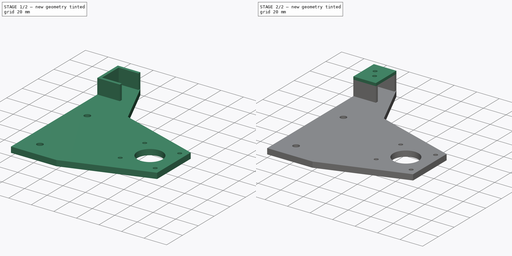
[diagram: build sequence overview — one tinted view per stage of 2, left to right]
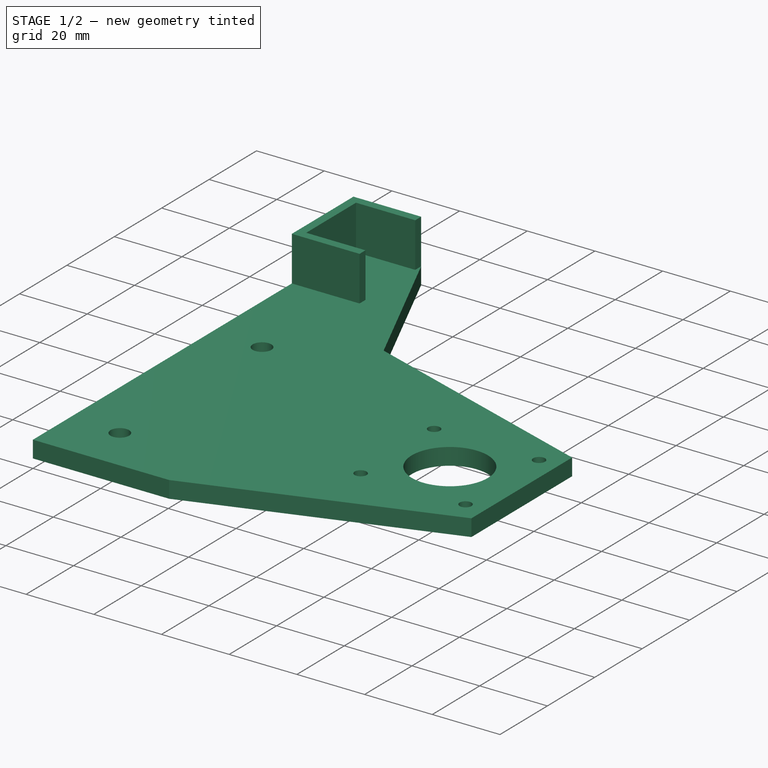
[diagram: stage 1 of 2 — iso view after this stage's code; geometry added in this stage tinted green]
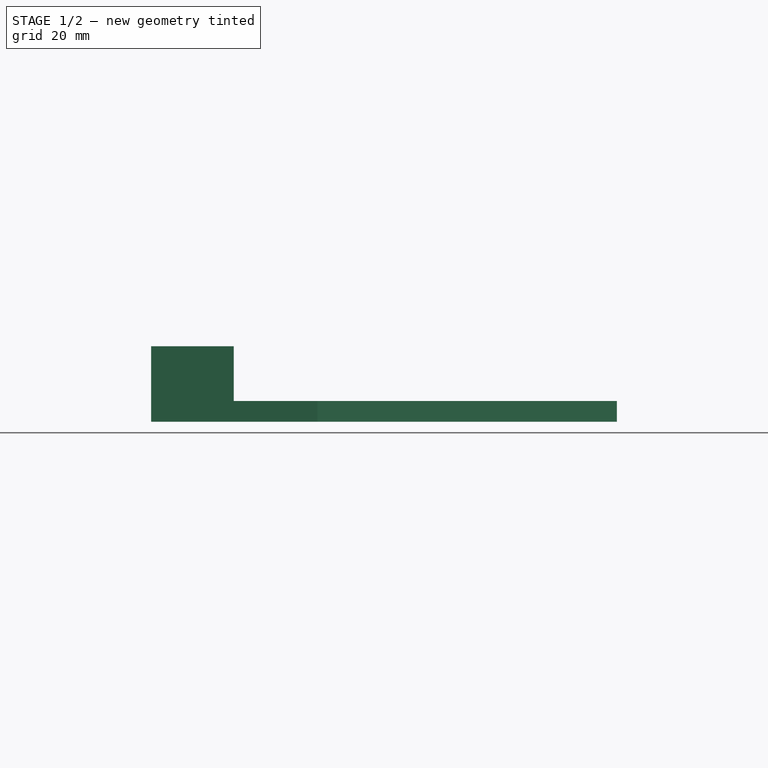
[diagram: stage 1 of 2 — front view after this stage's code; geometry added in this stage tinted green]
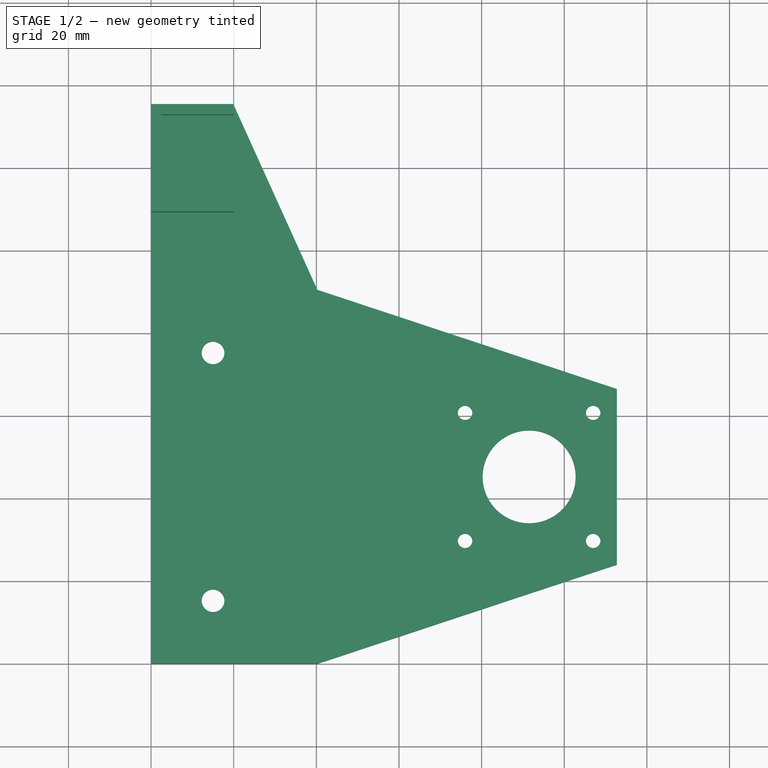
[diagram: stage 1 of 2 — top view after this stage's code; geometry added in this stage tinted green]
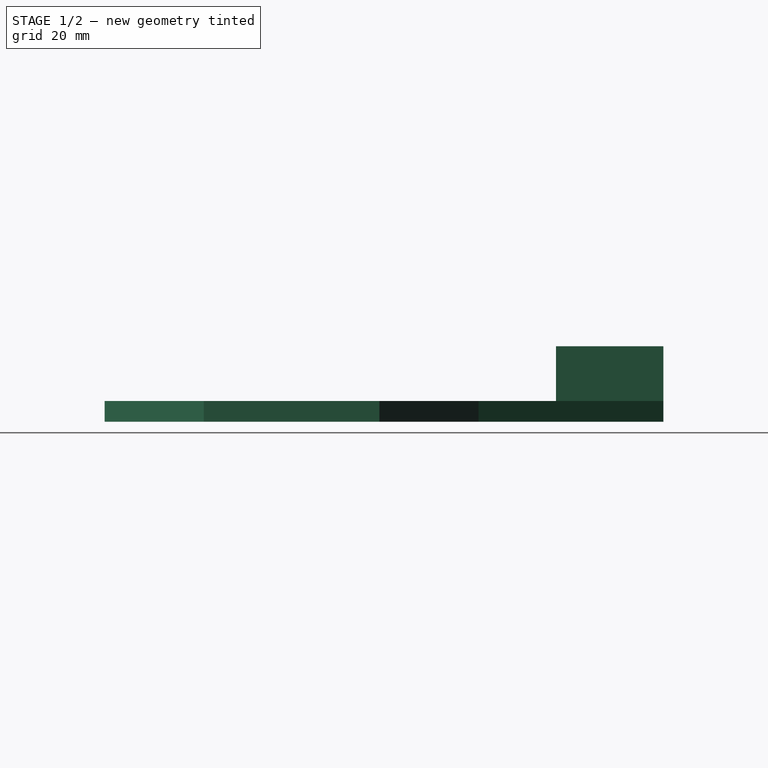
[diagram: stage 1 of 2 — right view after this stage's code; geometry added in this stage tinted green]
FCSTD DOCUMENT  (FreeCAD 0.19R)
Label: x-axis-motor-mount
License: All rights reserved
LicenseURL: http://en.wikipedia.org/wiki/All_rights_reserved
objects: Sketcher::SketchObject×3, PartDesign::Pad×3, PartDesign::Body×1
note: 10 computed .brp shape members not serialized (recipe doc carries the construction recipe); baked Part::Feature solids carry a one-line shape summary decoded from their .brp

FEATURE [Sketcher::SketchObject] Sketch
  FullyConstrained = true
  MapMode = 5
  Support = -> [XY_Plane]
  sketch-geometry (31):
    g0: LineSegment StartX=0 StartY=0 StartZ=0 EndX=40.25 EndY=0 EndZ=0
    g1: LineSegment StartX=40.25 StartY=90.5 StartZ=0 EndX=0 EndY=90.5 EndZ=0
    g2: LineSegment StartX=112.75 StartY=66.5 StartZ=0 EndX=112.75 EndY=24 EndZ=0
    g3: LineSegment StartX=40.25 StartY=90.5 StartZ=0 EndX=112.75 EndY=66.5 EndZ=0
    g4: LineSegment StartX=40.25 StartY=0 StartZ=0 EndX=112.75 EndY=24 EndZ=0
    g5: LineSegment StartX=0 StartY=45.25 StartZ=0 EndX=112.75 EndY=45.25 EndZ=0
    g6: LineSegment StartX=15 StartY=90.5 StartZ=0 EndX=15 EndY=0 EndZ=0
    g7: Circle CenterX=15 CenterY=75.25 CenterZ=0 NormalX=0 NormalY=0 NormalZ=1 AngleXU=0 Radius=2.75
    g8: Circle CenterX=15 CenterY=15.25 CenterZ=0 NormalX=0 NormalY=0 NormalZ=1 AngleXU=0 Radius=2.75
    g9: LineSegment StartX=112.75 StartY=66.5 StartZ=0 EndX=70.25 EndY=66.5 EndZ=0
    g10: LineSegment StartX=70.25 StartY=66.5 StartZ=0 EndX=70.25 EndY=24 EndZ=0
    g11: LineSegment StartX=70.25 StartY=24 StartZ=0 EndX=112.75 EndY=24 EndZ=0
    g12: LineSegment StartX=40.25 StartY=90.5 StartZ=0 EndX=40.25 EndY=0 EndZ=0
    g13: GeomPoint X=40.25 Y=45.25 Z=0
    g14: GeomPoint X=70.25 Y=45.25 Z=0
    g15: LineSegment StartX=91.5 StartY=66.5 StartZ=0 EndX=91.5 EndY=24 EndZ=0
    g16: Circle CenterX=91.5 CenterY=45.25 CenterZ=0 NormalX=0 NormalY=0 NormalZ=1 AngleXU=0 Radius=11.25
    g17: LineSegment StartX=76 StartY=60.75 StartZ=0 EndX=107 EndY=60.75 EndZ=0
    g18: LineSegment StartX=107 StartY=60.75 StartZ=0 EndX=107 EndY=29.75 EndZ=0
    g19: LineSegment StartX=107 StartY=29.75 StartZ=0 EndX=76 EndY=29.75 EndZ=0
    g20: LineSegment StartX=76 StartY=29.75 StartZ=0 EndX=76 EndY=60.75 EndZ=0
    g21: GeomPoint X=91.5 Y=60.75 Z=0
    g22: GeomPoint X=76 Y=45.25 Z=0
    g23: Circle CenterX=76 CenterY=60.75 CenterZ=0 NormalX=0 NormalY=0 NormalZ=1 AngleXU=0 Radius=1.75
    g24: Circle CenterX=107 CenterY=60.75 CenterZ=0 NormalX=0 NormalY=0 NormalZ=1 AngleXU=0 Radius=1.75
    g25: Circle CenterX=107 CenterY=29.75 CenterZ=0 NormalX=0 NormalY=0 NormalZ=1 AngleXU=0 Radius=1.75
    g26: Circle CenterX=76 CenterY=29.75 CenterZ=0 NormalX=0 NormalY=0 NormalZ=1 AngleXU=0 Radius=1.75
    g27: LineSegment StartX=0 StartY=135.25 StartZ=0 EndX=20 EndY=135.25 EndZ=0
    g28: LineSegment StartX=20 StartY=135.25 StartZ=0 EndX=40.25 EndY=90.5 EndZ=0
    g29: LineSegment StartX=0 StartY=0 StartZ=0 EndX=0 EndY=135.25 EndZ=0
    g30: GeomPoint X=0 Y=109.25 Z=0
  constraints (79):
    c: Horizontal(g0)
    c: Horizontal(g1)
    c: Coincident(g0,g-1)
    c: DistanceY(g0,g1) = 90.5
    c: Vertical(g2)
    c: Coincident(g3,g1)
    c: Coincident(g3,g2)
    c: Coincident(g4,g0)
    c: Coincident(g4,g2)
    c: Equal(g1,g0)
    c: Horizontal(g5)
    c: Symmetric(g1,g0,g5)
    c: Symmetric(g2,g2,g5)
    c: PointOnObject(g6,g1)
    c: PointOnObject(g6,g0)
    c: Vertical(g6)
    c: DistanceX(g1,g6) = 15
    c: PointOnObject(g7,g6)
    c: PointOnObject(g8,g6)
    c: DistanceY(g7,g6) = 15.25
    c: DistanceY(g6,g8) = 15.25
    c: Diameter(g8) = 5.5
    c: Diameter(g7) = 5.5
    c: DistanceY(g2,g2) = 42.5
    c: Coincident(g9,g2)
    c: Horizontal(g9)
    c: Coincident(g10,g9)
    c: Vertical(g10)
    c: Coincident(g11,g10)
    c: Coincident(g11,g2)
    c: Horizontal(g11)
    c: Equal(g9,g2)
    c: Coincident(g12,g1)
    c: Coincident(g12,g0)
    c: PointOnObject(g13,g12)
    c: PointOnObject(g14,g5)
    c: PointOnObject(g14,g10)
    c: PointOnObject(g13,g5)
    c: DistanceX(g13,g14) = 30
    c: PointOnObject(g15,g11)
    c: Vertical(g15)
    c: Symmetric(g9,g2,g15)
    c: PointOnObject(g16,g5)
    c: PointOnObject(g16,g15)
    c: Diameter(g16) = 22.5
    c: Coincident(g17,g18)
    c: Coincident(g18,g19)
    c: Coincident(g19,g20)
    c: Coincident(g20,g17)
    c: Horizontal(g17)
    c: Horizontal(g19)
    c: Vertical(g18)
    c: Vertical(g20)
    c: PointOnObject(g21,g15)
    c: PointOnObject(g22,g5)
    c: Symmetric(g17,g17,g21)
    c: Symmetric(g17,g19,g22)
    c: DistanceX(g17,g17) = 31
    c: Equal(g17,g20)
    c: Coincident(g23,g17)
    c: Coincident(g24,g17)
    c: Coincident(g25,g18)
    c: Coincident(g26,g19)
    c: Diameter(g23) = 3.5
    c: Equal(g23,g24)
    c: Equal(g24,g25)
    c: Equal(g25,g26)
    c: Horizontal(g27)
    c: PointOnObject(g27,g-2)
    c: DistanceX(g27,g27) = 20
    c: Coincident(g28,g27)
    c: Coincident(g28,g1)
    c: DistanceX(g0,g0) = 40.25
    c: Coincident(g29,g0)
    c: Coincident(g29,g27)
    c: PointOnObject(g5,g29)
    c: PointOnObject(g30,g29)
    c: DistanceY(g30,g27) = 26
    c: DistanceY(g5,g30) = 64
FEATURE [PartDesign::Pad] Pad
  Direction = (1,1,1)
  Length = 5
  Length2 = 100
  Profile = -> Sketch
  Type = 0
FEATURE [Sketcher::SketchObject] Sketch001
  FullyConstrained = true
  MapMode = 5
  Placement = pos=(0,0,5) rot=(0,0,1;0rad)
  Support = -> [Pad]
  sketch-geometry (8):
    g0: LineSegment StartX=0 StartY=135.25 StartZ=0 EndX=20 EndY=135.25 EndZ=0
    g1: LineSegment StartX=20 StartY=109.25 StartZ=0 EndX=0 EndY=109.25 EndZ=0
    g2: LineSegment StartX=0 StartY=109.25 StartZ=0 EndX=0 EndY=135.25 EndZ=0
    g3: LineSegment StartX=20 StartY=109.25 StartZ=0 EndX=20 EndY=111.75 EndZ=0
    g4: LineSegment StartX=20 StartY=111.75 StartZ=0 EndX=2.5 EndY=111.75 EndZ=0
    g5: LineSegment StartX=2.5 StartY=111.75 StartZ=0 EndX=2.5 EndY=132.75 EndZ=0
    g6: LineSegment StartX=2.5 StartY=132.75 StartZ=0 EndX=20 EndY=132.75 EndZ=0
    g7: LineSegment StartX=20 StartY=132.75 StartZ=0 EndX=20 EndY=135.25 EndZ=0
  constraints (24):
    c: Coincident(g1,g2)
    c: Coincident(g2,g0)
    c: Horizontal(g0)
    c: Horizontal(g1)
    c: Vertical(g2)
    c: PointOnObject(g0,g-2)
    c: DistanceX(g0,g0) = 20
    c: DistanceY(g2,g2) = 26
    c: DistanceY(g-1,g1) = 109.25
    c: Coincident(g3,g1)
    c: Vertical(g3)
    c: Coincident(g4,g3)
    c: Horizontal(g4)
    c: Coincident(g5,g4)
    c: Vertical(g5)
    c: Coincident(g6,g5)
    c: Horizontal(g6)
    c: Coincident(g7,g6)
    c: Coincident(g7,g0)
    c: Vertical(g7)
    c: Equal(g3,g7)
    c: Equal(g1,g0)
    c: DistanceX(g1,g4) = 2.5
    c: DistanceY(g3,g3) = 2.5
FEATURE [PartDesign::Pad] Pad001
  BaseFeature = -> Pad
  Direction = (1,1,1)
  Length = 13.25
  Length2 = 100
  Profile = -> Sketch001
  Type = 0
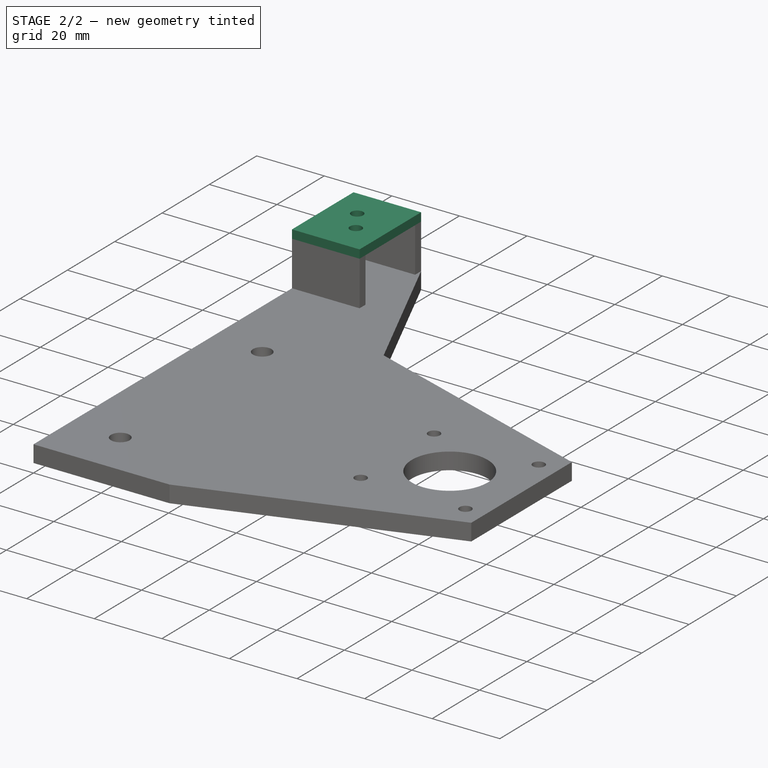
[diagram: stage 2 of 2 — iso view after this stage's code; geometry added in this stage tinted green]
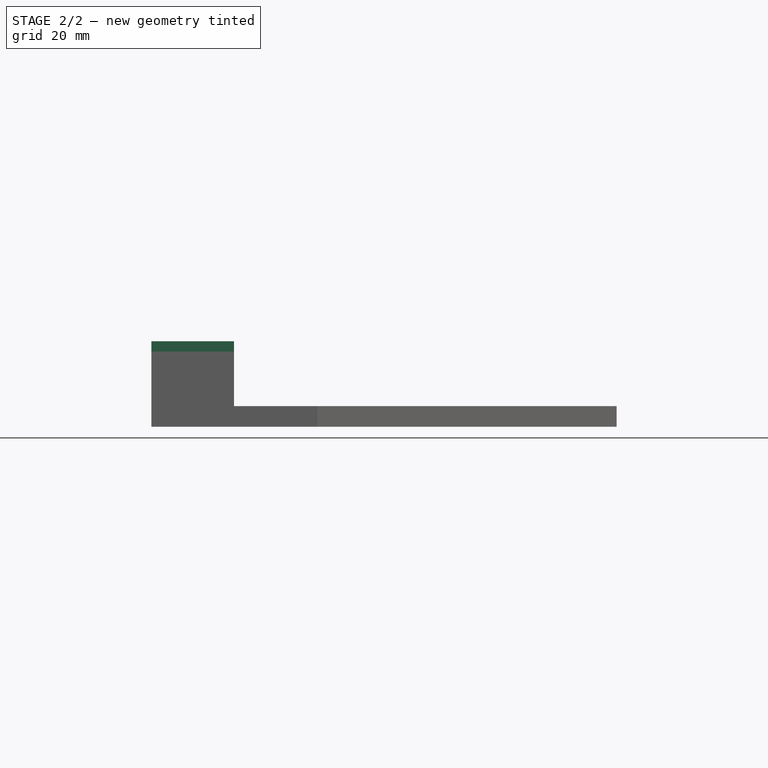
[diagram: stage 2 of 2 — front view after this stage's code; geometry added in this stage tinted green]
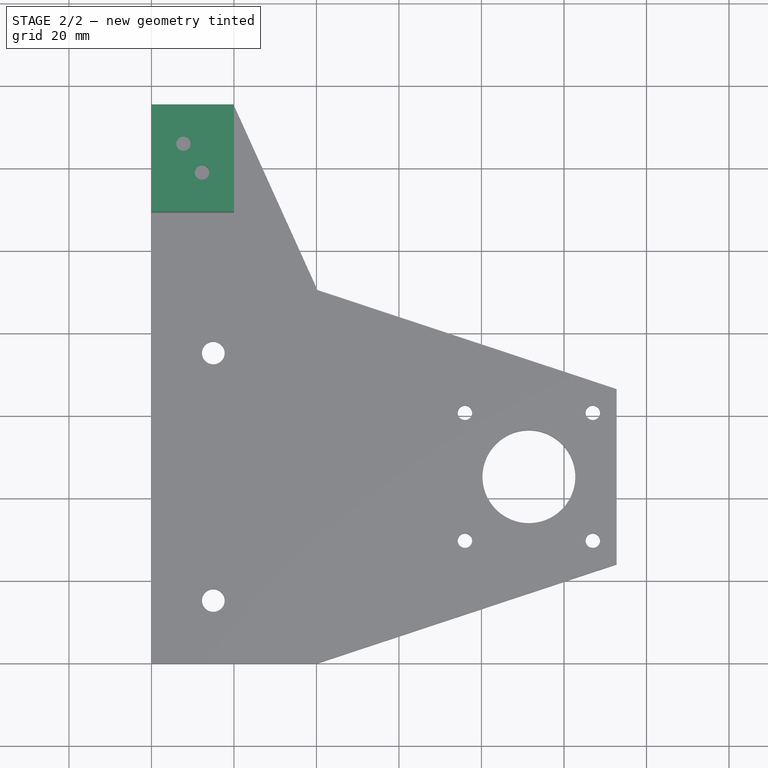
[diagram: stage 2 of 2 — top view after this stage's code; geometry added in this stage tinted green]
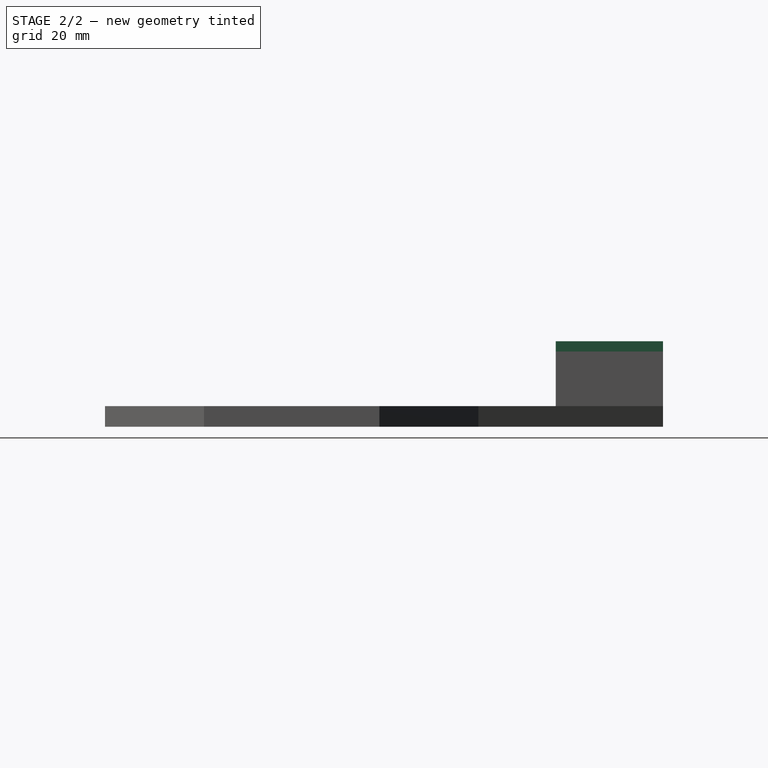
[diagram: stage 2 of 2 — right view after this stage's code; geometry added in this stage tinted green]
FEATURE [Sketcher::SketchObject] Sketch002
  FullyConstrained = true
  MapMode = 5
  Placement = pos=(0,0,18.25) rot=(0,0,1;0rad)
  Support = -> [Pad001]
  sketch-geometry (8):
    g0: LineSegment StartX=0 StartY=135.25 StartZ=0 EndX=20 EndY=135.25 EndZ=0
    g1: LineSegment StartX=20 StartY=135.25 StartZ=0 EndX=20 EndY=109.25 EndZ=0
    g2: LineSegment StartX=20 StartY=109.25 StartZ=0 EndX=0 EndY=109.25 EndZ=0
    g3: LineSegment StartX=0 StartY=109.25 StartZ=0 EndX=0 EndY=135.25 EndZ=0
    g4: LineSegment StartX=10 StartY=135.25 StartZ=0 EndX=10 EndY=109.25 EndZ=0
    g5: LineSegment StartX=0 StartY=122.25 StartZ=0 EndX=20 EndY=122.25 EndZ=0
    g6: Circle CenterX=7.75 CenterY=125.75 CenterZ=0 NormalX=0 NormalY=0 NormalZ=1 AngleXU=0 Radius=1.75
    g7: Circle CenterX=12.25 CenterY=118.75 CenterZ=0 NormalX=0 NormalY=0 NormalZ=1 AngleXU=0 Radius=1.75
  constraints (24):
    c: Coincident(g0,g1)
    c: Coincident(g1,g2)
    c: Coincident(g2,g3)
    c: Coincident(g3,g0)
    c: Horizontal(g0)
    c: Horizontal(g2)
    c: Vertical(g1)
    c: Vertical(g3)
    c: PointOnObject(g0,g-2)
    c: DistanceX(g0,g0) = 20
    c: DistanceY(g3,g3) = 26
    c: DistanceY(g-1,g2) = 109.25
    c: PointOnObject(g4,g2)
    c: Vertical(g4)
    c: PointOnObject(g5,g1)
    c: Horizontal(g5)
    c: Symmetric(g0,g0,g4)
    c: Symmetric(g0,g2,g5)
    c: Equal(g6,g7)
    c: Diameter(g7) = 3.5
    c: DistanceX(g6,g4) = 2.25
    c: DistanceX(g4,g7) = 2.25
    c: DistanceY(g7,g5) = 3.5
    c: DistanceY(g5,g6) = 3.5
FEATURE [PartDesign::Pad] Pad002
  BaseFeature = -> Pad001
  Direction = (1,1,1)
  Length = 2.5
  Length2 = 100
  Profile = -> Sketch002
  Type = 0
FEATURE [PartDesign::Body] Body
  Group = -> [Sketch,Pad,Sketch001,Pad001,Sketch002,Pad002]
  Origin = -> Origin
  Tip = -> Pad002
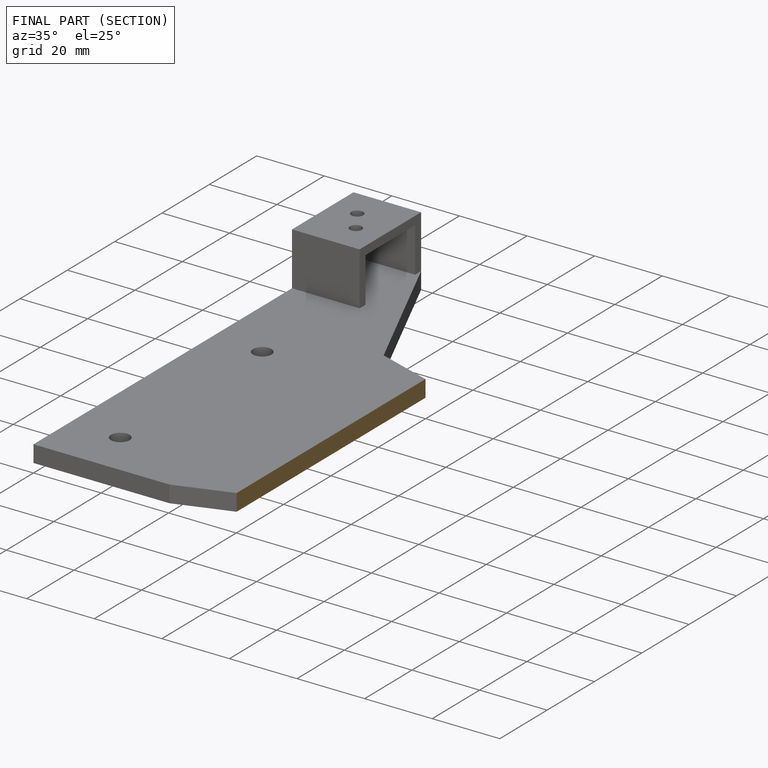
[diagram: finished part — half-section view (interior)]
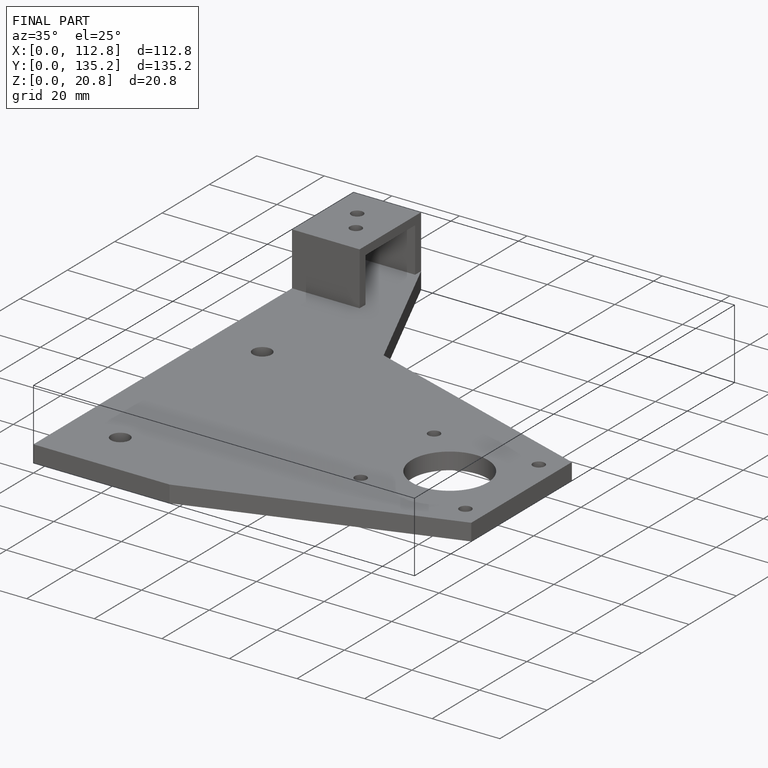
[diagram: finished part — iso view with bounding-box wireframe]
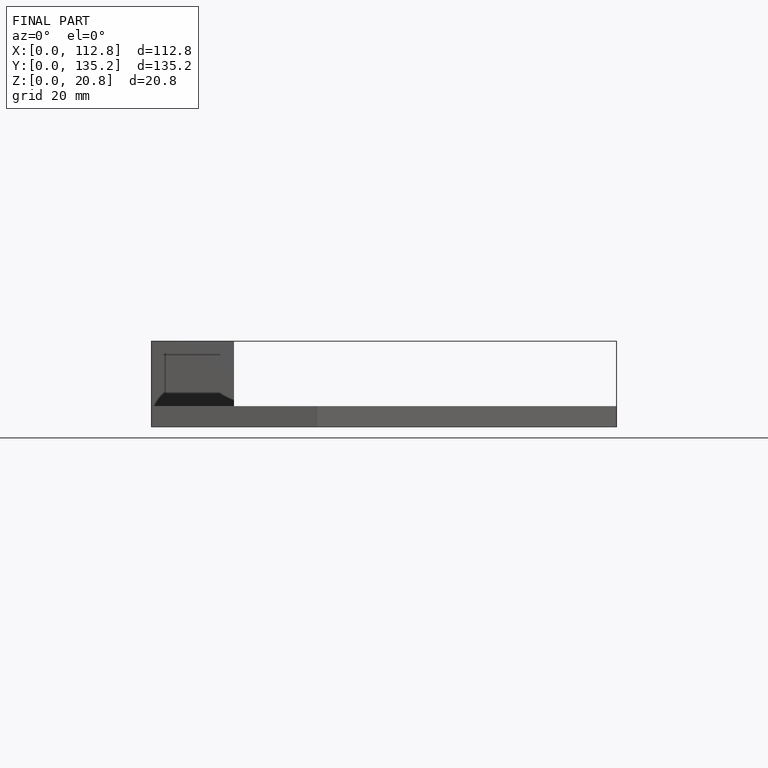
[diagram: finished part — front view with bounding-box wireframe]
